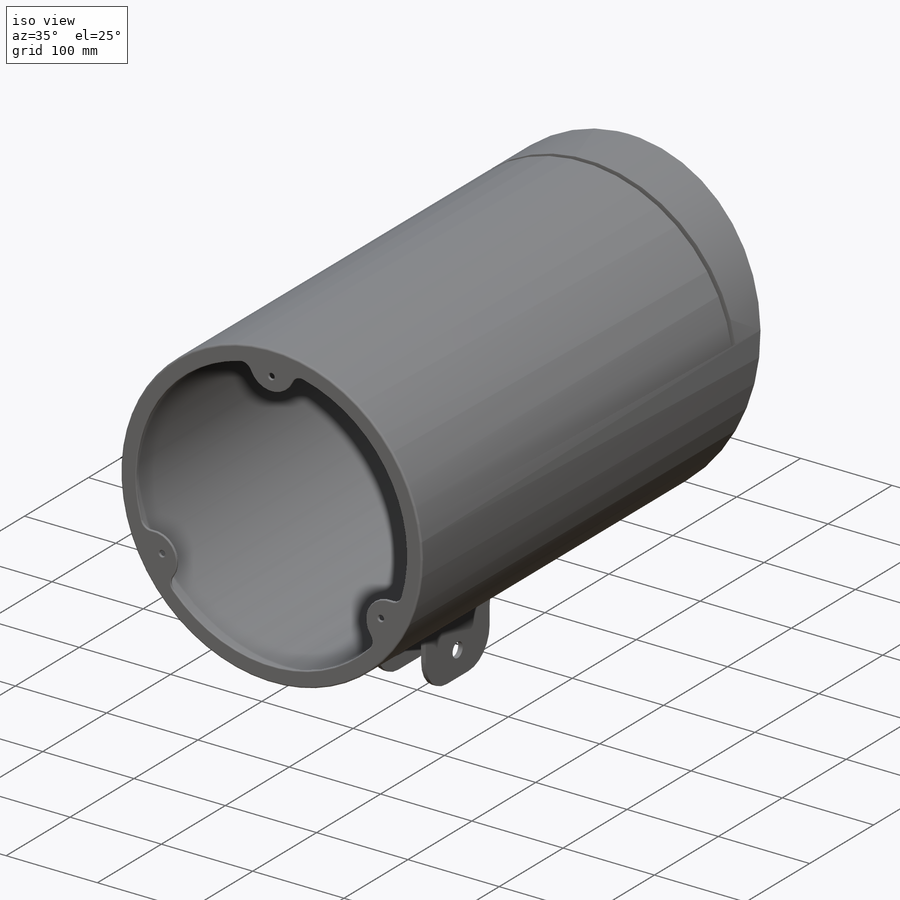
[diagram: iso view]
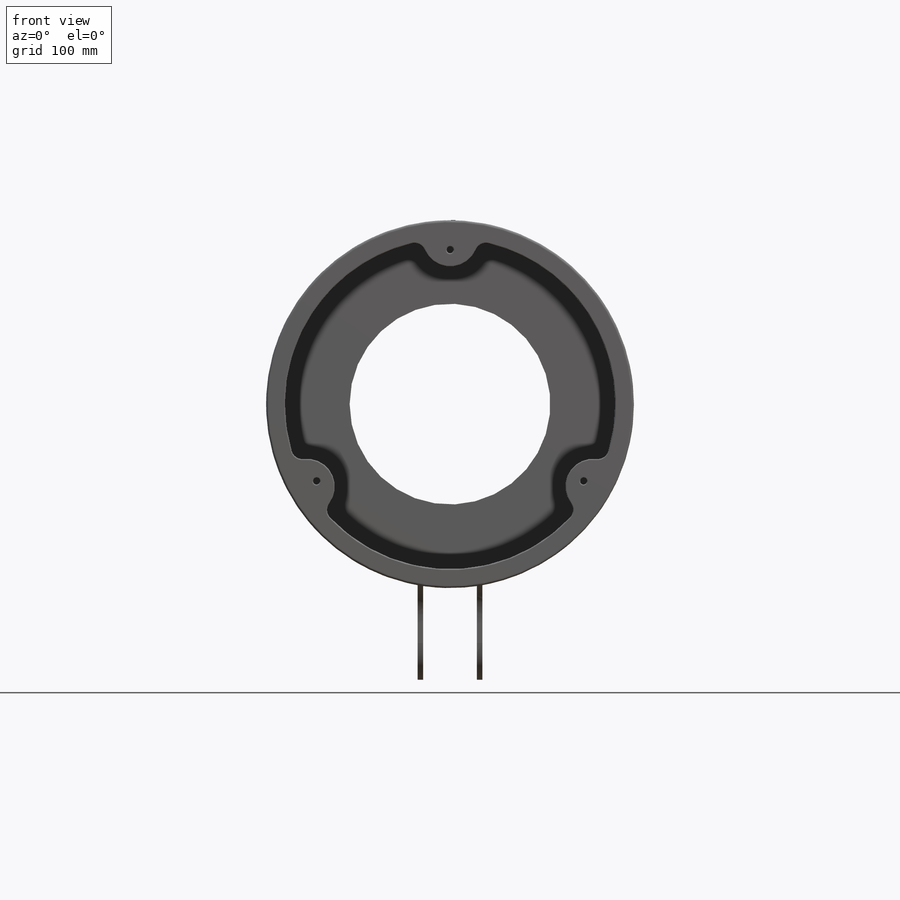
[diagram: front view]
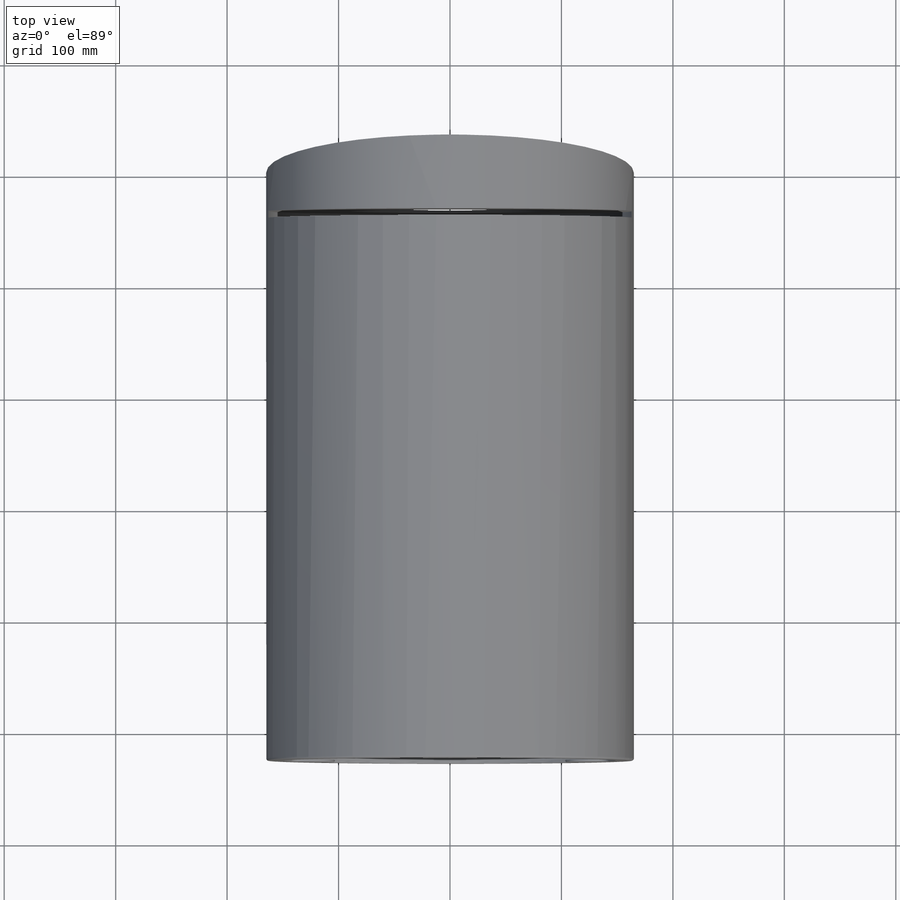
[diagram: top view]
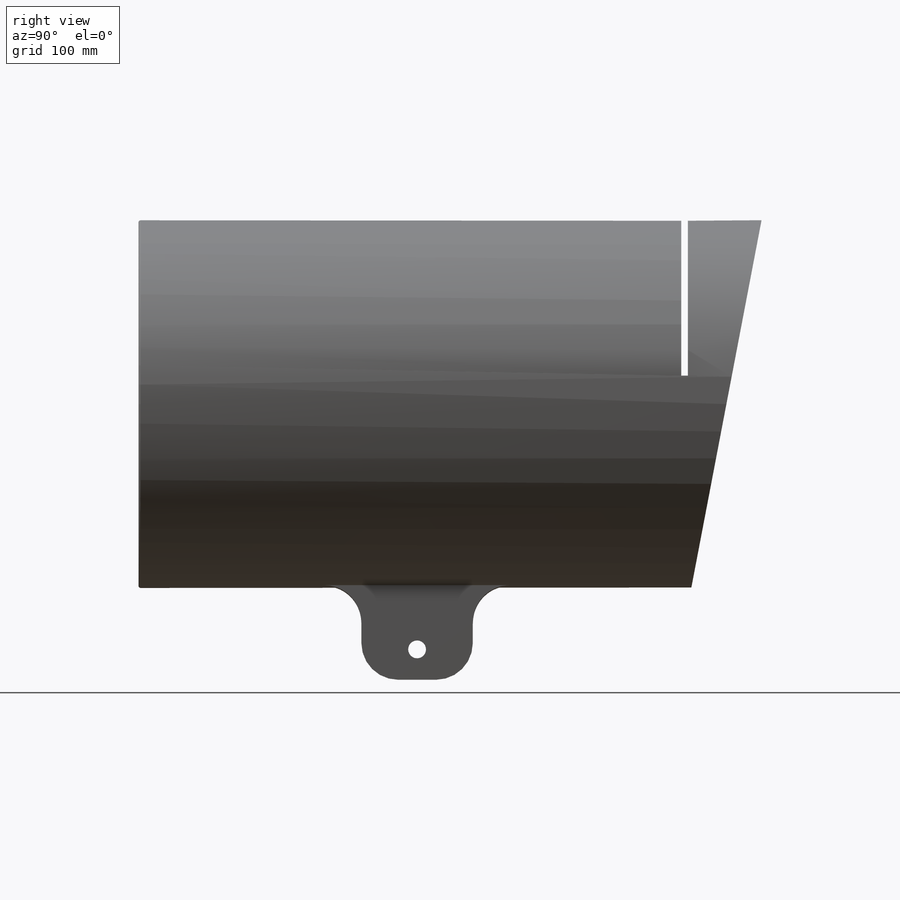
[diagram: right view]
SOLIDWORKS PART (.sldprt)
format: sldprt  version: not decoded by parser v0  size: 433,152 bytes
history: native  units: mm
features: sketch x13, cut_extrude x8, extrude x5, plane x3, shell x3, material x1, fillet x1 (+10 scaffold rows collapsed)
feature tree (44):
  scaffold x10  (default folders/planes/origin — collapsed)
  material  "Matériau <non spécifié>"
  plane  "Plan de face"
  plane  "Plan de dessus"
  plane  "Plan de droite"
  sketch  "Esquisse1"  dims[D1=330.0mm]
  extrude  "Boss.-Extru.1"  Depth=528mm
  sketch  "Esquisse3"  dims[D1=2.0mm]
  cut_extrude  "Enlèv. mat.-Extru.1"  Depth=33mm
  sketch  "Esquisse4"
  cut_extrude  "Enlèv. mat.-Extru.2"  [1 undecoded]
  fillet  "Congé2"  Radius=2mm
  shell  "Coque1"  Thickness=2mm
  sketch  "Esquisse5"  dims[D2=10.0mm D3=6.0mm D1=3.0 D4=3.0]
  cut_extrude  "Enlèv. mat.-Extru.3"  Depth=2mm
  shell  "Congé3"  Thickness=1mm
  sketch  "Esquisse6"  dims[D1=300.0mm]
  cut_extrude  "Enlèv. mat.-Extru.4"  Depth=2mm
  sketch  "Esquisse7"  dims[D1=0.0mm]
  extrude  "Boss.-Extru.2"  Depth=2mm
  sketch  "Esquisse8"  dims[D1=300.0mm]
  cut_extrude  "Enlèv. mat.-Extru.5"  Depth=2mm
  sketch  "Esquisse9"
  cut_extrude  "Enlèv. mat.-Extru.6"  [1 undecoded]
  sketch  "Esquisse10"  dims[D1=5.0mm]
  extrude  "Boss.-Extru.3"  Depth=100mm
  sketch  "Esquisse11"  dims[D1=10.0mm]
  cut_extrude  "Enlèv. mat.-Extru.7"  Depth=100mm
  shell  "Congé4"  Thickness=33mm
  sketch  "Esquisse13"  dims[D1=0.0mm]
  extrude  "Boss.-Extru.4"  Depth=60mm
  sketch  "Esquisse14"
  cut_extrude  "Enlèv. mat.-Extru.9"  Depth=60mm
  sketch  "Esquisse15"
  extrude  "Boss.-Extru.5"  Depth=2mm
decode coverage: 24 of 30 modeling features carry decoded parameters
note: 2 parameter values undecoded
note: suppression state not decoded; provenance and decode notes live in map.json
